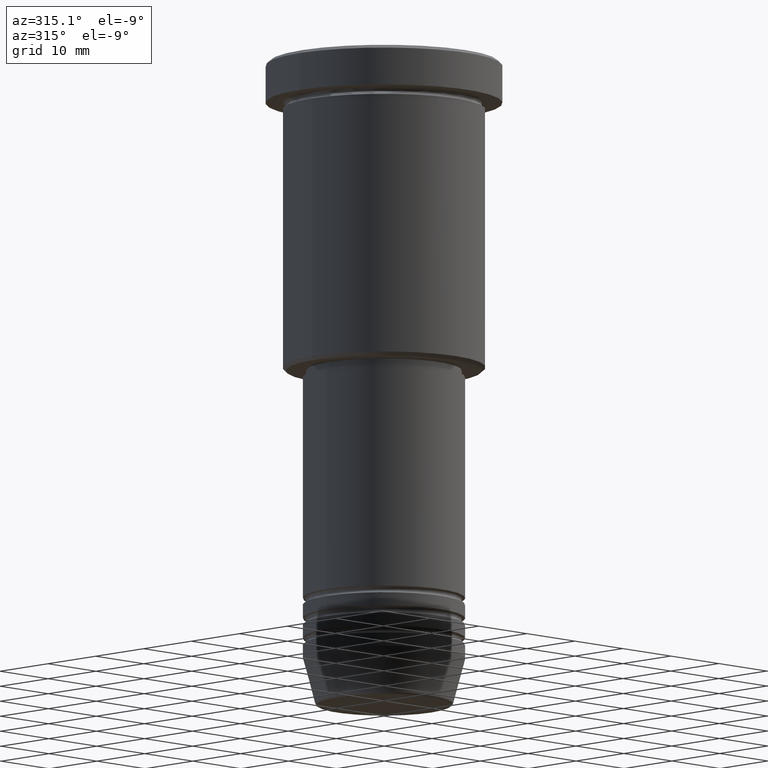
[diagram: clean part render]
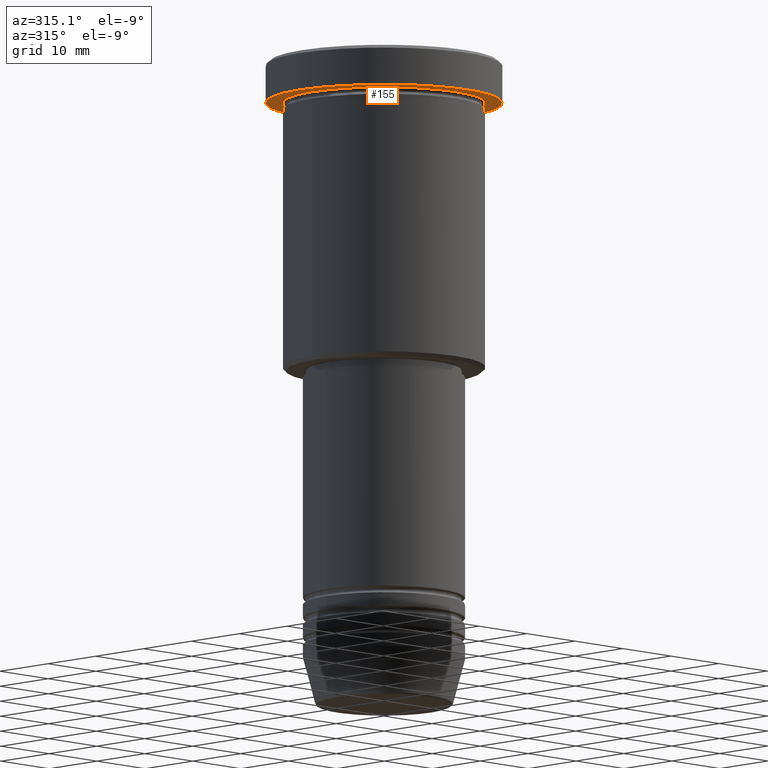
[diagram: same view with one face highlighted and labeled with its STEP entity id]
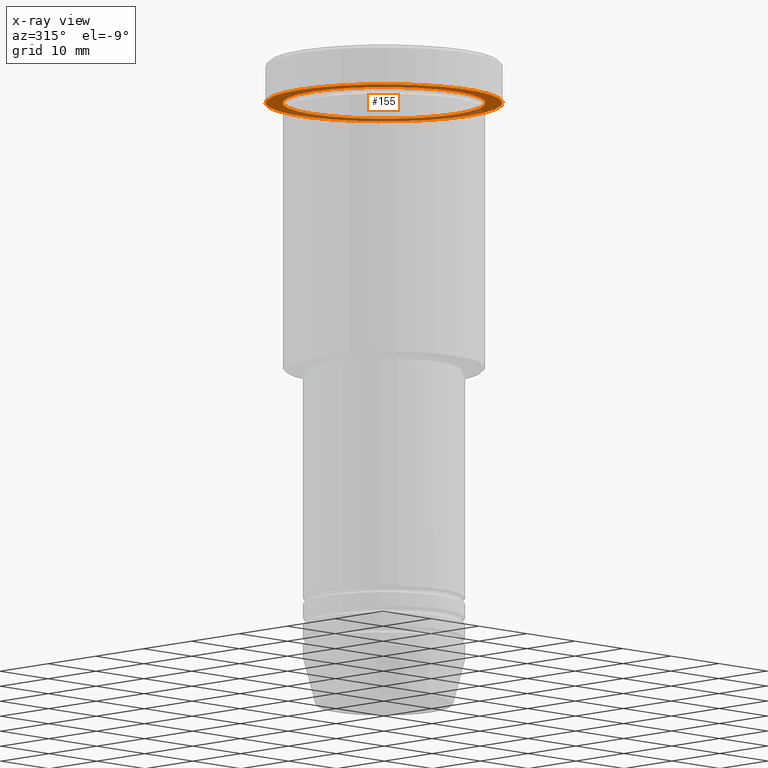
[diagram: x-ray of the same camera — body ghosted, the highlighted face saturated]
A machine part, auxiliary view. The second image highlights one B-rep face of the part: STEP entity #155.
The next image is the same camera in x-ray: the body ghosted, the highlighted face saturated — about 35% of this face is hidden behind the body in this view.
In plain terms, the highlighted planar face has unit normal (0, 0, -1).
Its self-contained STEP definition (entity closure, byte-faithful):
#8 = DIRECTION ( 'NONE',  ( 1.000000000000000000, 0.000000000000000000, 0.000000000000000000 ) ) ;
#53 = DIRECTION ( 'NONE',  ( -0.000000000000000000, -0.000000000000000000, 1.000000000000000000 ) ) ;
#115 = CIRCLE ( 'NONE', #308, 17.50000000000000000 ) ;
#153 = VERTEX_POINT ( 'NONE', #640 ) ;
#155 = ADVANCED_FACE ( 'NONE', ( #477, #1003 ), #834, .T. ) ;
#179 = CARTESIAN_POINT ( 'NONE',  ( 0.000000000000000000, 0.000000000000000000, -5.999999999999995559 ) ) ;
#186 = AXIS2_PLACEMENT_3D ( 'NONE', #489, #949, #587 ) ;
#243 = EDGE_LOOP ( 'NONE', ( #319, #457 ) ) ;
#277 = CIRCLE ( 'NONE', #583, 15.00000000000000000 ) ;
#279 = CIRCLE ( 'NONE', #1055, 17.50000000000000000 ) ;
#288 = CARTESIAN_POINT ( 'NONE',  ( 0.000000000000000000, 0.000000000000000000, -5.999999999999995559 ) ) ;
#308 = AXIS2_PLACEMENT_3D ( 'NONE', #623, #53, #795 ) ;
#314 = ORIENTED_EDGE ( 'NONE', *, *, #926, .T. ) ;
#319 = ORIENTED_EDGE ( 'NONE', *, *, #1028, .F. ) ;
#369 = CARTESIAN_POINT ( 'NONE',  ( -17.50000000000000000, 2.143131898507868248E-15, -5.999999999999995559 ) ) ;
#399 = EDGE_CURVE ( 'NONE', #1047, #153, #115, .T. ) ;
#417 = DIRECTION ( 'NONE',  ( -1.000000000000000000, 0.000000000000000000, 0.000000000000000000 ) ) ;
#422 = DIRECTION ( 'NONE',  ( -0.000000000000000000, -0.000000000000000000, 1.000000000000000000 ) ) ;
#448 = VERTEX_POINT ( 'NONE', #1156 ) ;
#457 = ORIENTED_EDGE ( 'NONE', *, *, #399, .F. ) ;
#477 = FACE_BOUND ( 'NONE', #656, .T. ) ;
#489 = CARTESIAN_POINT ( 'NONE',  ( 0.000000000000000000, 0.000000000000000000, -5.999999999999995559 ) ) ;
#557 = DIRECTION ( 'NONE',  ( 0.000000000000000000, 0.000000000000000000, -1.000000000000000000 ) ) ;
#583 = AXIS2_PLACEMENT_3D ( 'NONE', #179, #422, #417 ) ;
#587 = DIRECTION ( 'NONE',  ( -1.000000000000000000, 0.000000000000000000, 0.000000000000000000 ) ) ;
#623 = CARTESIAN_POINT ( 'NONE',  ( 0.000000000000000000, 0.000000000000000000, -5.999999999999995559 ) ) ;
#640 = CARTESIAN_POINT ( 'NONE',  ( 17.50000000000000000, 0.000000000000000000, -5.999999999999995559 ) ) ;
#656 = EDGE_LOOP ( 'NONE', ( #314, #980 ) ) ;
#707 = AXIS2_PLACEMENT_3D ( 'NONE', #1018, #557, #909 ) ;
#712 = EDGE_CURVE ( 'NONE', #803, #448, #765, .T. ) ;
#717 = DIRECTION ( 'NONE',  ( -0.000000000000000000, -0.000000000000000000, 1.000000000000000000 ) ) ;
#765 = CIRCLE ( 'NONE', #186, 15.00000000000000000 ) ;
#795 = DIRECTION ( 'NONE',  ( 1.000000000000000000, 0.000000000000000000, 0.000000000000000000 ) ) ;
#803 = VERTEX_POINT ( 'NONE', #1041 ) ;
#834 = PLANE ( 'NONE',  #707 ) ;
#909 = DIRECTION ( 'NONE',  ( -1.000000000000000000, 0.000000000000000000, -0.000000000000000000 ) ) ;
#926 = EDGE_CURVE ( 'NONE', #448, #803, #277, .T. ) ;
#949 = DIRECTION ( 'NONE',  ( -0.000000000000000000, -0.000000000000000000, 1.000000000000000000 ) ) ;
#980 = ORIENTED_EDGE ( 'NONE', *, *, #712, .T. ) ;
#1003 = FACE_OUTER_BOUND ( 'NONE', #243, .T. ) ;
#1018 = CARTESIAN_POINT ( 'NONE',  ( 0.000000000000000000, 17.50000000000000000, -5.999999999999995559 ) ) ;
#1028 = EDGE_CURVE ( 'NONE', #153, #1047, #279, .T. ) ;
#1041 = CARTESIAN_POINT ( 'NONE',  ( 15.00000000000000000, 1.836970198721029589E-15, -5.999999999999994671 ) ) ;
#1047 = VERTEX_POINT ( 'NONE', #369 ) ;
#1055 = AXIS2_PLACEMENT_3D ( 'NONE', #288, #717, #8 ) ;
#1156 = CARTESIAN_POINT ( 'NONE',  ( -15.00000000000000000, 0.000000000000000000, -5.999999999999994671 ) ) ;